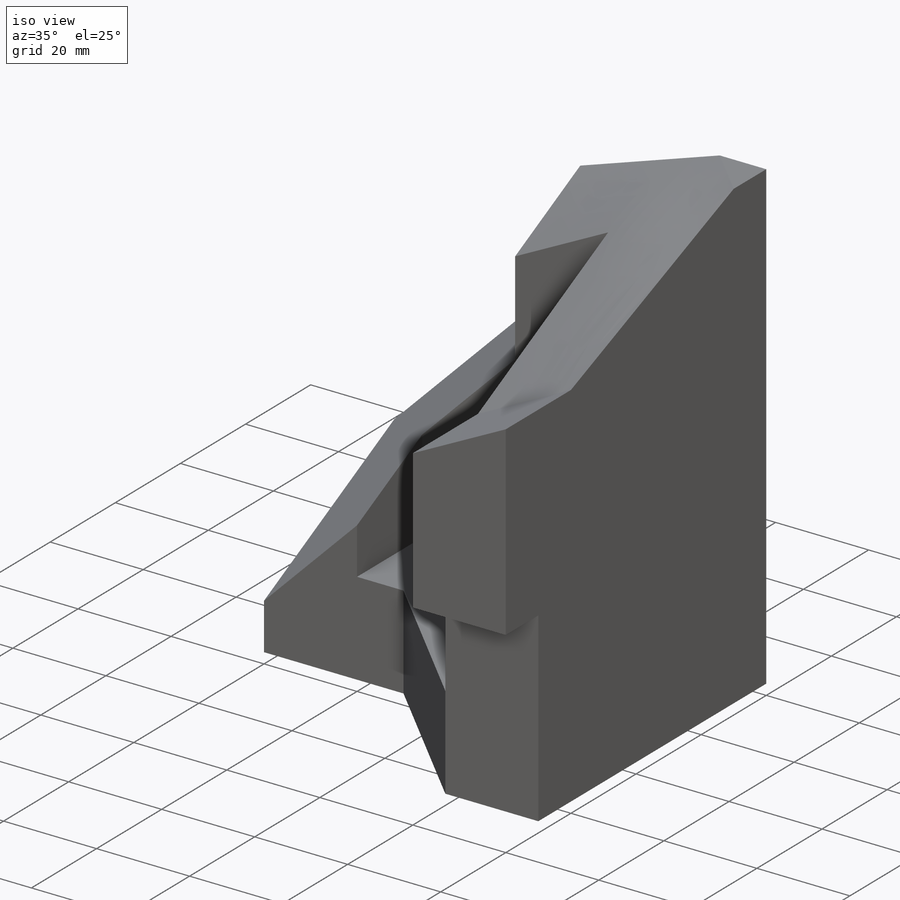
[diagram: iso view]
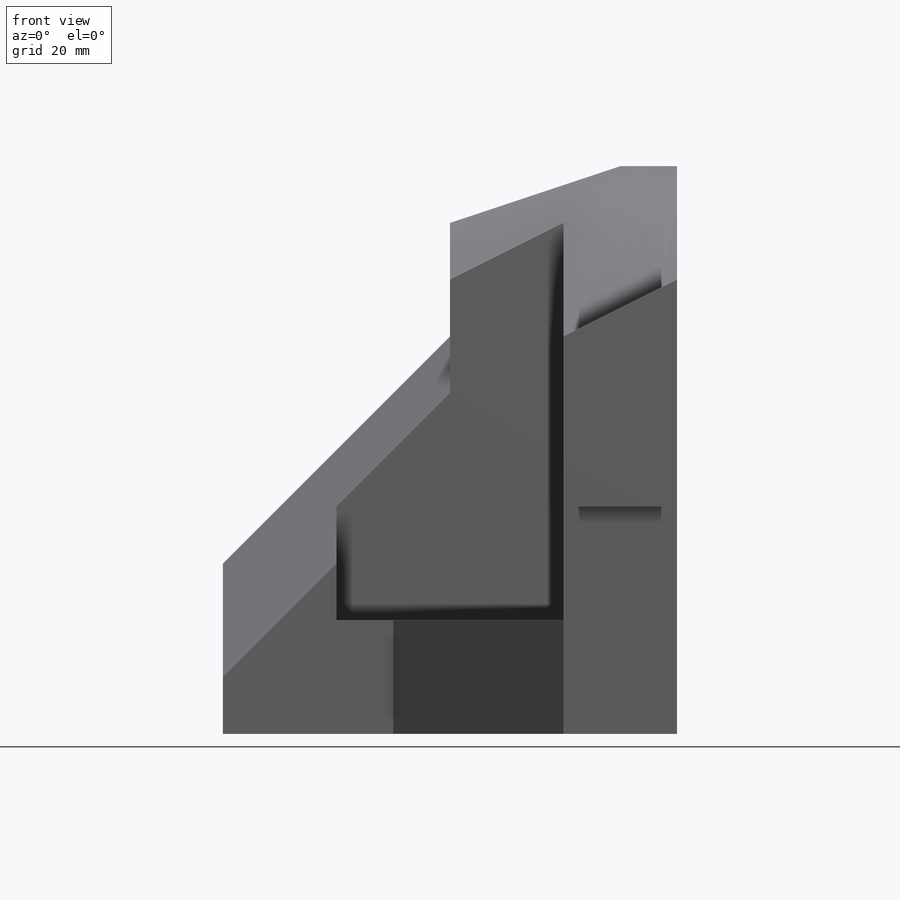
[diagram: front view]
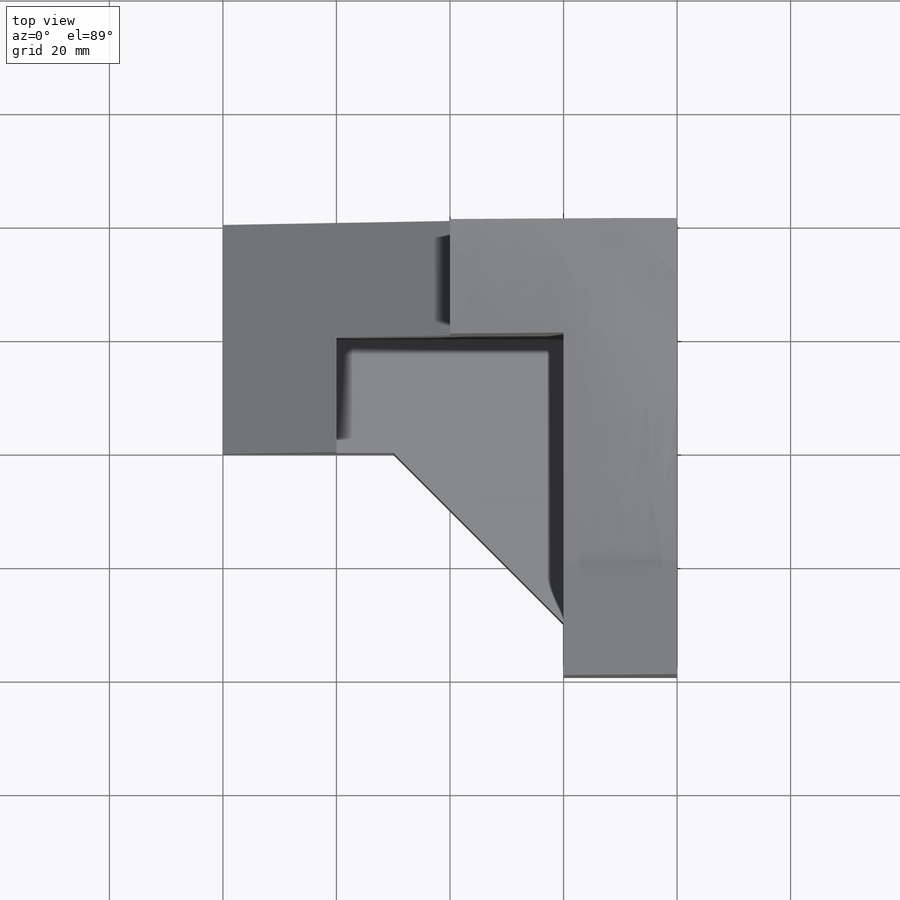
[diagram: top view]
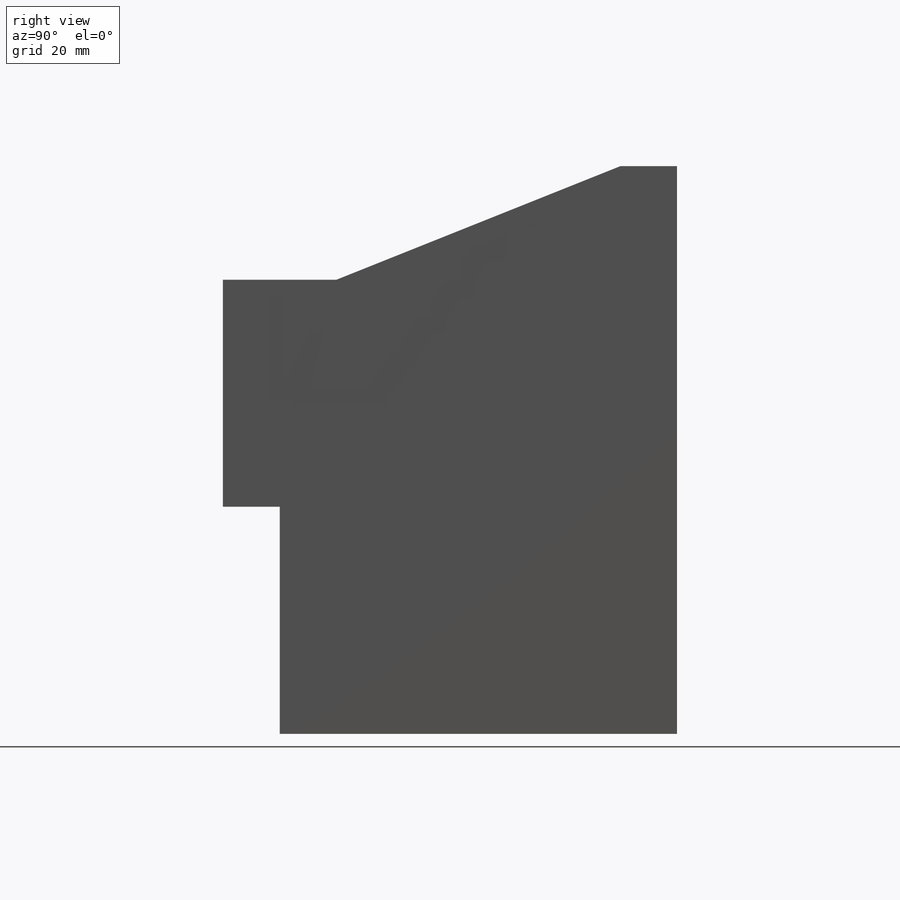
[diagram: right view]
SOLIDWORKS PART (.sldprt)
format: sldprt  version: not decoded by parser v0  size: 294,400 bytes
history: native  units: mm
features: sketch x15, cut_extrude x7, material x1, extrude x1 (+13 scaffold rows collapsed)
feature tree (37):
  scaffold x13  (default folders/planes/origin — collapsed)
  material  "Material <not specified>"
  sketch  "Sketch1"  dims[D1=80.0mm D2=80.0mm]
  extrude  "Boss-Extrude1"  Depth=100mm
  sketch  "Sketch2"  dims[D1=20.0mm D2=20.0mm D3=40.0mm]
  cut_extrude  "Cut-Extrude1"  Depth=80mm
  sketch  "Sketch3"  dims[D1=10.0mm D2=30.0mm D3=30.0mm]
  cut_extrude  "Cut-Extrude2"  [1 undecoded]
  sketch  "Sketch4"  dims[D1=40.0mm]
  cut_extrude  "Cut-Extrude3"  Depth=10mm
  sketch  "Sketch5"  dims[D1=30.0mm D2=20.0mm]
  cut_extrude  "Cut-Extrude4"  Depth=20mm
  sketch  "Sketch6"  dims[c1.D1=20.0mm c1.D2=20.0mm c2.D1=20.0mm c2.D2=20.0mm c2.D3=40.0mm]
  cut_extrude  "Cut-Extrude5"  Depth=30mm
  sketch  "Sketch8"  dims[D1=10.0mm]
  sketch  "Sketch9"  dims[D1=10.0mm D2=20.0mm]
  sketch  "3DSketch1"  dims[D1=10.0mm D2=10.0mm D3=10.0mm]
  cut_extrude  "Cut-Extrude6"  Depth=30mm
  sketch  "Sketch10"  dims[D1=20.0mm D2=20.0mm]
  sketch  "Sketch11"  dims[D1=20.0mm D2=10.0mm]
  sketch  "Sketch12"  dims[D1=20.0mm D2=20.0mm]
  sketch  "Sketch13"  dims[D1=20.0mm]
  sketch  "Sketch14"  dims[D1=20.0mm]
  sketch  "3DSketch3"
  cut_extrude  "Cut-Extrude7"  Depth=30mm
decode coverage: 21 of 23 modeling features carry decoded parameters
note: 1 parameter value undecoded
note: suppression state not decoded; provenance and decode notes live in map.json
